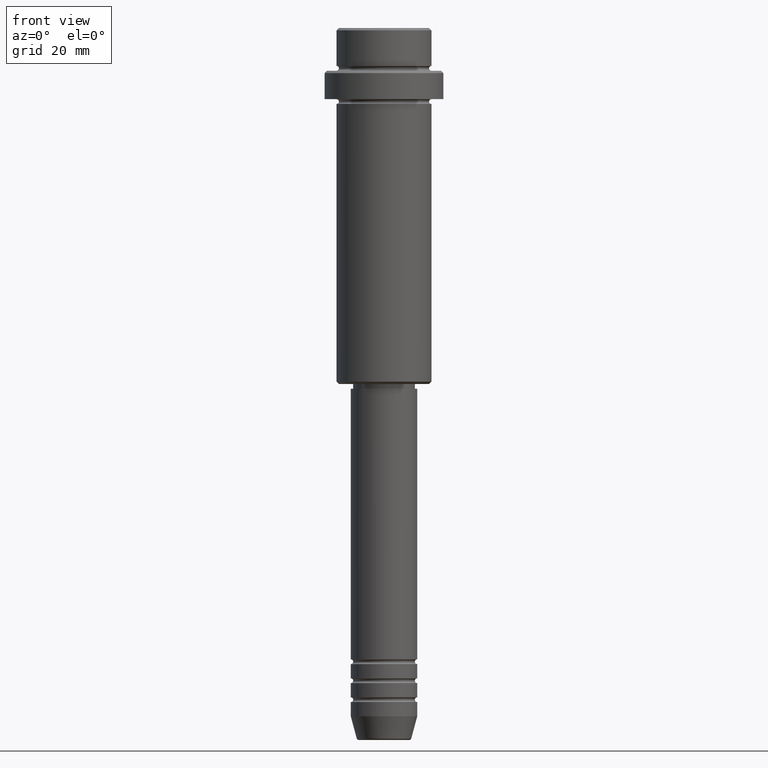
[diagram: clean part render]
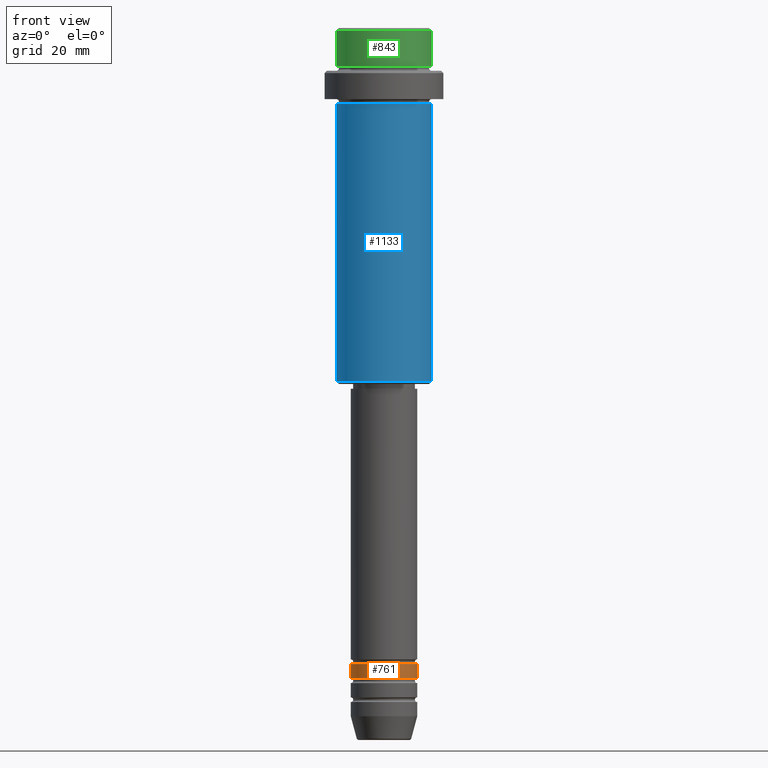
[diagram: same view with three faces highlighted in distinct colors, each labeled with its STEP entity id]
A machine part, front view with three faces highlighted in distinct colors.
Their STEP definitions:

[orange] entity #761 — the highlighted cylindrical surface (edge-blend (fillet) strip) has radius 7 mm, axis along (-0, -0, 1).
#16 = ORIENTED_EDGE ( 'NONE', *, *, #803, .F. ) ;
#49 = CARTESIAN_POINT ( 'NONE',  ( 7.000000000000000000, 0.000000000000000000, -136.9999999999998579 ) ) ;
#53 = EDGE_CURVE ( 'NONE', #825, #75, #1230, .T. ) ;
#75 = VERTEX_POINT ( 'NONE', #514 ) ;
#98 = LINE ( 'NONE', #178, #603 ) ;
#178 = CARTESIAN_POINT ( 'NONE',  ( 7.000000000000000000, 0.000000000000000000, 0.000000000000000000 ) ) ;
#218 = EDGE_CURVE ( 'NONE', #1317, #719, #98, .T. ) ;
#250 = EDGE_LOOP ( 'NONE', ( #409, #1059, #1381, #16 ) ) ;
#254 = VECTOR ( 'NONE', #290, 1000.000000000000000 ) ;
#275 = DIRECTION ( 'NONE',  ( -0.000000000000000000, -0.000000000000000000, 1.000000000000000000 ) ) ;
#290 = DIRECTION ( 'NONE',  ( -0.000000000000000000, -0.000000000000000000, 1.000000000000000000 ) ) ;
#342 = CARTESIAN_POINT ( 'NONE',  ( 7.000000000000000000, 0.000000000000000000, -133.9999999999998579 ) ) ;
#343 = CARTESIAN_POINT ( 'NONE',  ( 0.000000000000000000, 0.000000000000000000, -136.9999999999998579 ) ) ;
#359 = EDGE_CURVE ( 'NONE', #825, #1317, #1010, .T. ) ;
#386 = DIRECTION ( 'NONE',  ( 1.000000000000000000, 0.000000000000000000, 0.000000000000000000 ) ) ;
#409 = ORIENTED_EDGE ( 'NONE', *, *, #53, .F. ) ;
#474 = CARTESIAN_POINT ( 'NONE',  ( 0.000000000000000000, 0.000000000000000000, 0.000000000000000000 ) ) ;
#488 = CYLINDRICAL_SURFACE ( 'NONE', #1118, 7.000000000000000000 ) ;
#514 = CARTESIAN_POINT ( 'NONE',  ( -7.000000000000000000, 8.572527594031473190E-16, -133.9999999999998579 ) ) ;
#603 = VECTOR ( 'NONE', #1055, 1000.000000000000000 ) ;
#670 = DIRECTION ( 'NONE',  ( -0.000000000000000000, -0.000000000000000000, 1.000000000000000000 ) ) ;
#718 = AXIS2_PLACEMENT_3D ( 'NONE', #343, #670, #908 ) ;
#719 = VERTEX_POINT ( 'NONE', #342 ) ;
#761 = ADVANCED_FACE ( 'NONE', ( #1262 ), #488, .T. ) ;
#803 = EDGE_CURVE ( 'NONE', #75, #719, #1156, .T. ) ;
#806 = CARTESIAN_POINT ( 'NONE',  ( 0.000000000000000000, 0.000000000000000000, -133.9999999999998579 ) ) ;
#825 = VERTEX_POINT ( 'NONE', #1038 ) ;
#908 = DIRECTION ( 'NONE',  ( 1.000000000000000000, 0.000000000000000000, 0.000000000000000000 ) ) ;
#1010 = CIRCLE ( 'NONE', #718, 7.000000000000000000 ) ;
#1028 = AXIS2_PLACEMENT_3D ( 'NONE', #806, #1245, #1257 ) ;
#1038 = CARTESIAN_POINT ( 'NONE',  ( -7.000000000000000000, 8.572527594031473190E-16, -136.9999999999998579 ) ) ;
#1055 = DIRECTION ( 'NONE',  ( -0.000000000000000000, -0.000000000000000000, 1.000000000000000000 ) ) ;
#1059 = ORIENTED_EDGE ( 'NONE', *, *, #359, .T. ) ;
#1118 = AXIS2_PLACEMENT_3D ( 'NONE', #474, #275, #386 ) ;
#1156 = CIRCLE ( 'NONE', #1028, 7.000000000000000000 ) ;
#1230 = LINE ( 'NONE', #1336, #254 ) ;
#1245 = DIRECTION ( 'NONE',  ( -0.000000000000000000, -0.000000000000000000, 1.000000000000000000 ) ) ;
#1257 = DIRECTION ( 'NONE',  ( 1.000000000000000000, 0.000000000000000000, 0.000000000000000000 ) ) ;
#1262 = FACE_OUTER_BOUND ( 'NONE', #250, .T. ) ;
#1317 = VERTEX_POINT ( 'NONE', #49 ) ;
#1336 = CARTESIAN_POINT ( 'NONE',  ( -7.000000000000000000, 8.572527594031473190E-16, 0.000000000000000000 ) ) ;
#1381 = ORIENTED_EDGE ( 'NONE', *, *, #218, .T. ) ;

[blue] entity #1133 — the highlighted cylindrical surface (partial cylindrical patch) has radius 10 mm, axis along (-0, -0, 1).
#66 = EDGE_CURVE ( 'NONE', #899, #1042, #723, .T. ) ;
#88 = DIRECTION ( 'NONE',  ( -1.000000000000000000, 0.000000000000000000, 0.000000000000000000 ) ) ;
#92 = CARTESIAN_POINT ( 'NONE',  ( 0.000000000000000000, 0.000000000000000000, -16.00000000000000000 ) ) ;
#146 = AXIS2_PLACEMENT_3D ( 'NONE', #628, #1079, #88 ) ;
#194 = DIRECTION ( 'NONE',  ( -0.000000000000000000, -0.000000000000000000, 1.000000000000000000 ) ) ;
#239 = VERTEX_POINT ( 'NONE', #864 ) ;
#240 = AXIS2_PLACEMENT_3D ( 'NONE', #92, #396, #510 ) ;
#258 = AXIS2_PLACEMENT_3D ( 'NONE', #676, #763, #1110 ) ;
#352 = CARTESIAN_POINT ( 'NONE',  ( 10.00000000000000000, 0.000000000000000000, -74.50000000000001421 ) ) ;
#396 = DIRECTION ( 'NONE',  ( -0.000000000000000000, -0.000000000000000000, 1.000000000000000000 ) ) ;
#410 = CARTESIAN_POINT ( 'NONE',  ( 10.00000000000000000, 0.000000000000000000, 0.000000000000000000 ) ) ;
#456 = FACE_OUTER_BOUND ( 'NONE', #990, .T. ) ;
#463 = EDGE_CURVE ( 'NONE', #1042, #239, #537, .T. ) ;
#475 = EDGE_CURVE ( 'NONE', #1227, #239, #1092, .T. ) ;
#510 = DIRECTION ( 'NONE',  ( 1.000000000000000000, 0.000000000000000000, 0.000000000000000000 ) ) ;
#537 = CIRCLE ( 'NONE', #240, 10.00000000000000000 ) ;
#569 = EDGE_CURVE ( 'NONE', #899, #1227, #1234, .T. ) ;
#610 = ORIENTED_EDGE ( 'NONE', *, *, #66, .F. ) ;
#623 = CARTESIAN_POINT ( 'NONE',  ( -10.00000000000000000, 1.224646799147353256E-15, -74.50000000000001421 ) ) ;
#628 = CARTESIAN_POINT ( 'NONE',  ( 0.000000000000000000, 0.000000000000000000, -74.50000000000001421 ) ) ;
#643 = CARTESIAN_POINT ( 'NONE',  ( -10.00000000000000000, 1.224646799147353256E-15, 0.000000000000000000 ) ) ;
#676 = CARTESIAN_POINT ( 'NONE',  ( 0.000000000000000000, 0.000000000000000000, 0.000000000000000000 ) ) ;
#723 = LINE ( 'NONE', #643, #1070 ) ;
#763 = DIRECTION ( 'NONE',  ( -0.000000000000000000, -0.000000000000000000, 1.000000000000000000 ) ) ;
#864 = CARTESIAN_POINT ( 'NONE',  ( 10.00000000000000000, 0.000000000000000000, -16.00000000000000000 ) ) ;
#887 = CARTESIAN_POINT ( 'NONE',  ( -10.00000000000000000, 1.224646799147353256E-15, -16.00000000000000000 ) ) ;
#899 = VERTEX_POINT ( 'NONE', #623 ) ;
#975 = ORIENTED_EDGE ( 'NONE', *, *, #569, .T. ) ;
#990 = EDGE_LOOP ( 'NONE', ( #610, #975, #1357, #1392 ) ) ;
#1042 = VERTEX_POINT ( 'NONE', #887 ) ;
#1051 = VECTOR ( 'NONE', #1193, 1000.000000000000000 ) ;
#1070 = VECTOR ( 'NONE', #194, 1000.000000000000000 ) ;
#1079 = DIRECTION ( 'NONE',  ( -0.000000000000000000, -0.000000000000000000, 1.000000000000000000 ) ) ;
#1092 = LINE ( 'NONE', #410, #1051 ) ;
#1097 = CYLINDRICAL_SURFACE ( 'NONE', #258, 10.00000000000000000 ) ;
#1110 = DIRECTION ( 'NONE',  ( 1.000000000000000000, 0.000000000000000000, 0.000000000000000000 ) ) ;
#1133 = ADVANCED_FACE ( 'NONE', ( #456 ), #1097, .T. ) ;
#1193 = DIRECTION ( 'NONE',  ( -0.000000000000000000, -0.000000000000000000, 1.000000000000000000 ) ) ;
#1227 = VERTEX_POINT ( 'NONE', #352 ) ;
#1234 = CIRCLE ( 'NONE', #146, 10.00000000000000000 ) ;
#1357 = ORIENTED_EDGE ( 'NONE', *, *, #475, .T. ) ;
#1392 = ORIENTED_EDGE ( 'NONE', *, *, #463, .F. ) ;

[green] entity #843 — the highlighted cylindrical surface (partial cylindrical patch) has radius 10 mm, axis along (-0, -0, 1).
#11 = LINE ( 'NONE', #1022, #746 ) ;
#67 = FACE_OUTER_BOUND ( 'NONE', #1143, .T. ) ;
#94 = EDGE_CURVE ( 'NONE', #491, #554, #280, .T. ) ;
#161 = CARTESIAN_POINT ( 'NONE',  ( 0.000000000000000000, 0.000000000000000000, 0.000000000000000000 ) ) ;
#177 = LINE ( 'NONE', #1197, #507 ) ;
#184 = ORIENTED_EDGE ( 'NONE', *, *, #667, .T. ) ;
#195 = ORIENTED_EDGE ( 'NONE', *, *, #1354, .T. ) ;
#211 = CARTESIAN_POINT ( 'NONE',  ( 9.999999999999998224, 0.000000000000000000, -0.4999999999999970024 ) ) ;
#215 = AXIS2_PLACEMENT_3D ( 'NONE', #287, #302, #1082 ) ;
#280 = CIRCLE ( 'NONE', #467, 9.999999999999998224 ) ;
#287 = CARTESIAN_POINT ( 'NONE',  ( 0.000000000000000000, 0.000000000000000000, -7.999999999999998224 ) ) ;
#302 = DIRECTION ( 'NONE',  ( -0.000000000000000000, -0.000000000000000000, 1.000000000000000000 ) ) ;
#311 = CARTESIAN_POINT ( 'NONE',  ( 0.000000000000000000, 0.000000000000000000, -0.4999999999999970024 ) ) ;
#411 = DIRECTION ( 'NONE',  ( 1.000000000000000000, 0.000000000000000000, 0.000000000000000000 ) ) ;
#415 = CARTESIAN_POINT ( 'NONE',  ( -9.999999999999998224, 1.224646799147353059E-15, -7.999999999999998224 ) ) ;
#419 = AXIS2_PLACEMENT_3D ( 'NONE', #161, #1054, #1149 ) ;
#442 = DIRECTION ( 'NONE',  ( -0.000000000000000000, -0.000000000000000000, 1.000000000000000000 ) ) ;
#467 = AXIS2_PLACEMENT_3D ( 'NONE', #311, #972, #411 ) ;
#491 = VERTEX_POINT ( 'NONE', #211 ) ;
#507 = VECTOR ( 'NONE', #752, 1000.000000000000000 ) ;
#554 = VERTEX_POINT ( 'NONE', #851 ) ;
#631 = CARTESIAN_POINT ( 'NONE',  ( 9.999999999999998224, 0.000000000000000000, -7.999999999999998224 ) ) ;
#667 = EDGE_CURVE ( 'NONE', #1334, #491, #11, .T. ) ;
#695 = CYLINDRICAL_SURFACE ( 'NONE', #419, 9.999999999999998224 ) ;
#746 = VECTOR ( 'NONE', #442, 1000.000000000000000 ) ;
#752 = DIRECTION ( 'NONE',  ( -0.000000000000000000, -0.000000000000000000, 1.000000000000000000 ) ) ;
#843 = ADVANCED_FACE ( 'NONE', ( #67 ), #695, .T. ) ;
#851 = CARTESIAN_POINT ( 'NONE',  ( -9.999999999999998224, 1.224646799147353059E-15, -0.4999999999999970024 ) ) ;
#966 = EDGE_CURVE ( 'NONE', #992, #554, #177, .T. ) ;
#972 = DIRECTION ( 'NONE',  ( 0.000000000000000000, 0.000000000000000000, -1.000000000000000000 ) ) ;
#992 = VERTEX_POINT ( 'NONE', #415 ) ;
#1022 = CARTESIAN_POINT ( 'NONE',  ( 9.999999999999998224, 0.000000000000000000, 0.000000000000000000 ) ) ;
#1054 = DIRECTION ( 'NONE',  ( -0.000000000000000000, -0.000000000000000000, 1.000000000000000000 ) ) ;
#1082 = DIRECTION ( 'NONE',  ( 1.000000000000000000, 0.000000000000000000, 0.000000000000000000 ) ) ;
#1137 = CIRCLE ( 'NONE', #215, 9.999999999999998224 ) ;
#1143 = EDGE_LOOP ( 'NONE', ( #1202, #195, #184, #1377 ) ) ;
#1149 = DIRECTION ( 'NONE',  ( 1.000000000000000000, 0.000000000000000000, 0.000000000000000000 ) ) ;
#1197 = CARTESIAN_POINT ( 'NONE',  ( -9.999999999999998224, 1.224646799147353059E-15, 0.000000000000000000 ) ) ;
#1202 = ORIENTED_EDGE ( 'NONE', *, *, #966, .F. ) ;
#1334 = VERTEX_POINT ( 'NONE', #631 ) ;
#1354 = EDGE_CURVE ( 'NONE', #992, #1334, #1137, .T. ) ;
#1377 = ORIENTED_EDGE ( 'NONE', *, *, #94, .T. ) ;